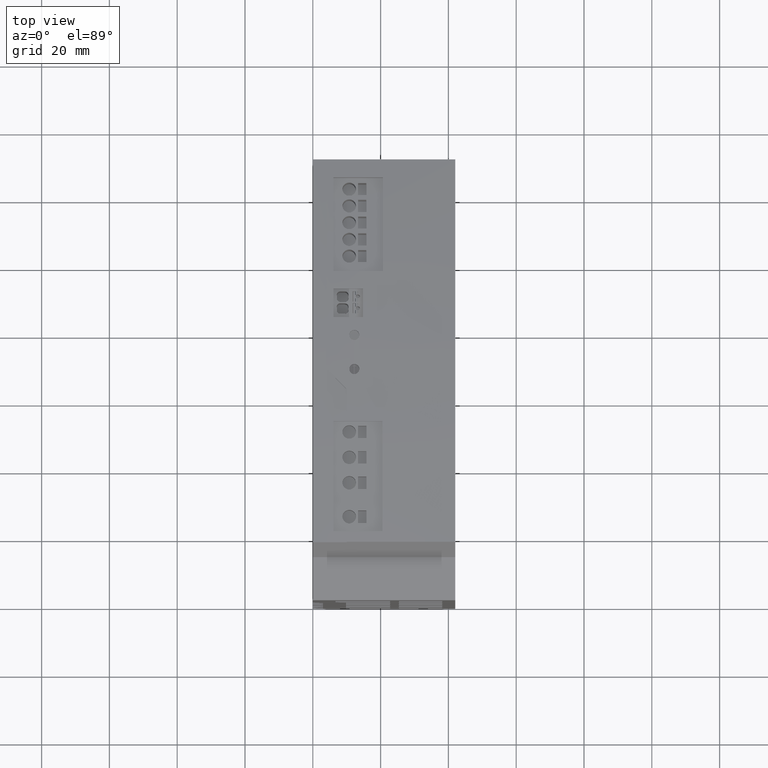
[diagram: clean part render]
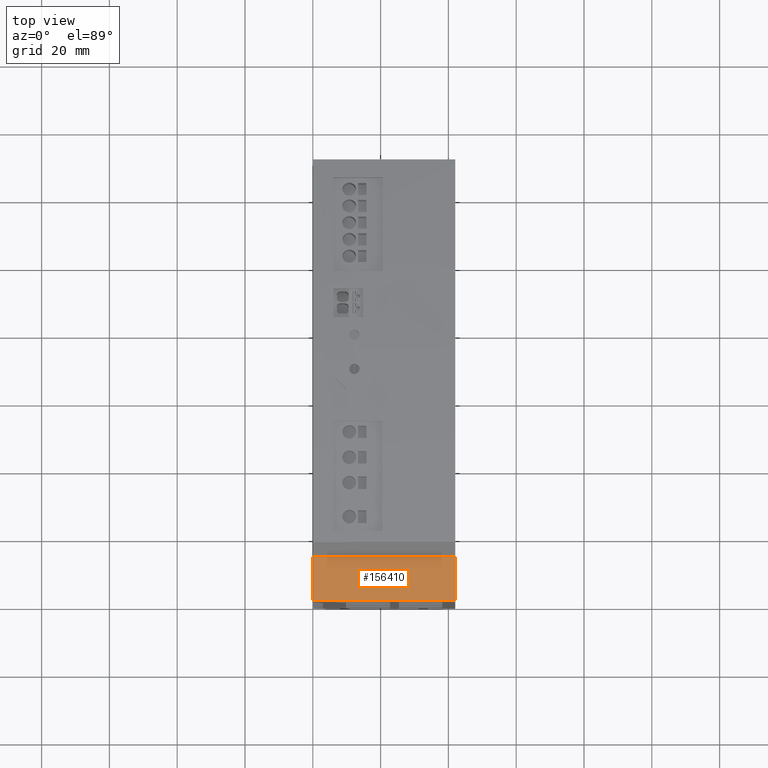
[diagram: same view with one face highlighted and labeled with its STEP entity id]
A machine part, top view. The second image highlights one B-rep face of the part: STEP entity #156410.
In plain terms, the highlighted cylindrical surface (partial cylindrical patch) has radius 75 mm, axis along (1, 0, 0).
Its self-contained STEP definition (entity closure, byte-faithful):
#151290=CARTESIAN_POINT('',(152.380000000004,12.6005909487722,-8.5));
#151300=VERTEX_POINT('',#151290);
#151330=CARTESIAN_POINT('',(78.52535719996,25.65783939084,-8.5));
#151340=DIRECTION('',(0.,0.,-1.));
#151350=DIRECTION('',(-1.,0.,0.));
#151360=AXIS2_PLACEMENT_3D('',#151330,#151340,#151350);
#151370=CIRCLE('',#151360,75.);
#151380=CARTESIAN_POINT('',(149.000000000004,0.,-8.5));
#151390=VERTEX_POINT('',#151380);
#151400=EDGE_CURVE('',#151300,#151390,#151370,.T.);
#156100=CARTESIAN_POINT('',(78.52535719996,25.65783939084,-70.3000024));
#156110=DIRECTION('',(0.,0.,-1.));
#156120=DIRECTION('',(-1.,0.,0.));
#156130=AXIS2_PLACEMENT_3D('',#156100,#156110,#156120);
#156140=CYLINDRICAL_SURFACE('',#156130,75.);
#156150=CARTESIAN_POINT('',(149.000000000004,0.,-70.3000024));
#156160=DIRECTION('',(0.,0.,-1.));
#156170=VECTOR('',#156160,1.);
#156180=LINE('',#156150,#156170);
#156190=CARTESIAN_POINT('',(149.000000000004,0.,-50.5));
#156200=VERTEX_POINT('',#156190);
#156210=EDGE_CURVE('',#151390,#156200,#156180,.T.);
#156220=ORIENTED_EDGE('',*,*,#156210,.T.);
#156230=ORIENTED_EDGE('',*,*,#151400,.T.);
#156240=CARTESIAN_POINT('',(152.380000000004,12.6005909487721,
-70.3000024));
#156250=DIRECTION('',(0.,0.,1.));
#156260=VECTOR('',#156250,1.);
#156270=LINE('',#156240,#156260);
#156280=CARTESIAN_POINT('',(152.380000000004,12.6005909487721,-50.5));
#156290=VERTEX_POINT('',#156280);
#156300=EDGE_CURVE('',#156290,#151300,#156270,.T.);
#156310=ORIENTED_EDGE('',*,*,#156300,.T.);
#156320=CARTESIAN_POINT('',(78.52535719996,25.65783939084,-50.5));
#156330=DIRECTION('',(0.,0.,-1.));
#156340=DIRECTION('',(-1.,0.,0.));
#156350=AXIS2_PLACEMENT_3D('',#156320,#156330,#156340);
#156360=CIRCLE('',#156350,75.);
#156370=EDGE_CURVE('',#156290,#156200,#156360,.T.);
#156380=ORIENTED_EDGE('',*,*,#156370,.F.);
#156390=EDGE_LOOP('',(#156380,#156310,#156230,#156220));
#156400=FACE_OUTER_BOUND('',#156390,.T.);
#156410=ADVANCED_FACE('',(#156400),#156140,.T.);